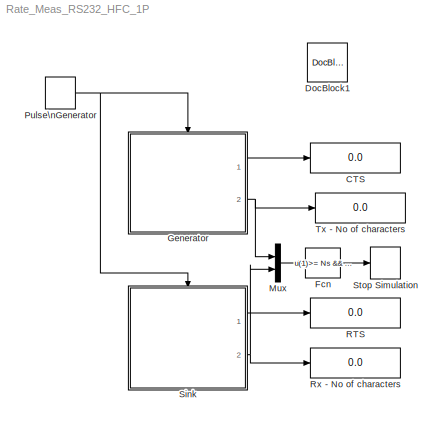
MODEL Rate_Meas_RS232_HFC_1P
KIND model
CONFIG PreLoadFcn = clear all;\nclose all;\nclc;\n\nTs = 0.01;          % clk (period)\nNs =  1;\n\n\n\n\n
CONFIG StartFcn = clc;\nclose all;\n\nNs =  200;      % Characters to Tx and to Rx\nminV = 0;       %  minimum data value\nmaxV = 255;       %  minimum data value\nTx_array = randi([minV maxV], 1, Ns, 'uint8');\nRx_array = randi([minV maxV], 1, Ns, 'uint8');\n\n\n%\n%   RS232 port initialization\n%\nPORTNAME = 'COM56';\nfprintf('\\nOpening RS232 port %s ...... ', PORTNAME);\ns2 = serial(PORTNAME,'BaudRate',9600,'Pa...<+411ch>
CONFIG StopFcn = e_time = toc(ts);\n\n%\n%   RS232 ports release\n%\ndisp(' ');\ndisp('Deactivating RS232 port ......');\n\nfclose(s2)\ndelete(s2)\nclear s2\n\nfprintf('RS232 port %s deactivated\\n', PORTNAME);\n\nif Tx_array == Rx_array\n  disp('Data exchange without errors');\n  fprintf('\\nData Rate = %4.2f Bps\\n', Ns/e_time);\nelse\n   Ne = sum((Tx_array - Rx_array) ~= 0);\n   fprintf('\\nData exchange with %...<+51ch>
BLOCK [Display] CTS
  Decimation = 1
  Lockdown = off
  Ports = [1]
  SID = 56
BLOCK [Reference] DocBlock1  REF=simulink/Model-Wide\nUtilities/DocBlock
  DocumentType = Text
  Ports = []
  SID = 15
  SourceBlock = simulink/Model-Wide\nUtilities/DocBlock
  SourceType = DocBlock
  UserData = DataTag0
  UserDataPersistent = on
BLOCK [Fcn] Fcn
  Expr = u(1)>= Ns && u(2)>=Ns
  SID = 81
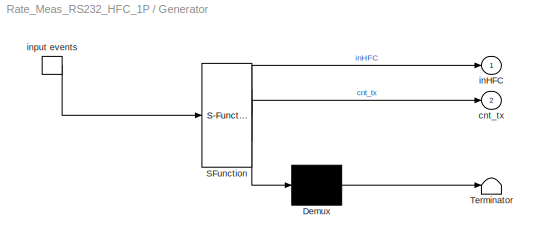
BLOCK [SubSystem] Generator
  ErrorFcn = Stateflow.Translate.translate
  FunctionWithSeparateData = off
  MaskHideContents = off
  MinAlgLoopOccurrences = off
  Opaque = off
  PermitHierarchicalResolution = ExplicitOnly
  Ports = [0, 2, 0, 1]
  PropExecContextOutsideSubsystem = off
  RTWSystemCode = Auto
  RequestExecContextInheritance = off
  SFBlockType = Chart
  SID = 45
  TreatAsAtomicUnit = on
BLOCK [Demux] Generator/ Demux 
  Outputs = 1
  Ports = [1, 1]
  SID = 45::54
BLOCK [S-Function] Generator/ SFunction 
  EnableBusSupport = on
  FunctionName = sf_sfun
  PortCounts = [1 3]
  Ports = [1, 3]
  SID = 45::53
  Tag = Stateflow S-Function Rate_Meas_RS232_HFC_1P 3
BLOCK [Terminator] Generator/ Terminator 
  SID = 45::55
BLOCK [TriggerPort] Generator/ input events 
  Ports = [0, 1]
  SID = 45::29
  ShowOutputPort = on
  StatesWhenEnabling = held
  TriggerType = either
BLOCK [Outport] Generator/cnt_tx
  IconDisplay = Port number
  Port = 2
  SID = 45::56
BLOCK [Outport] Generator/inHFC
  IconDisplay = Port number
  SID = 45::57
BLOCK [Mux] Mux
  DisplayOption = bar
  Inputs = 2
  Ports = [2, 1]
  SID = 82
BLOCK [DiscretePulseGenerator] Pulse\nGenerator
  Period = Ts
  Ports = [0, 1]
  PulseType = Time based
  PulseWidth = 50
  SID = 4
BLOCK [Display] RTS
  Decimation = 1
  Lockdown = off
  Ports = [1]
  SID = 69
BLOCK [Display] Rx - No of characters
  Decimation = 1
  Lockdown = off
  Ports = [1]
  SID = 68
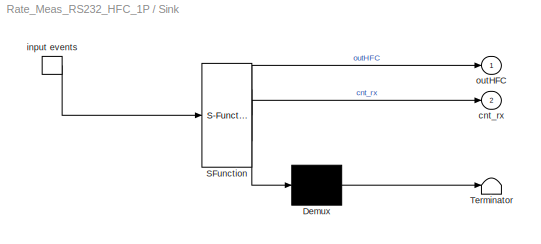
BLOCK [SubSystem] Sink
  ErrorFcn = Stateflow.Translate.translate
  FunctionWithSeparateData = off
  MaskHideContents = off
  MinAlgLoopOccurrences = off
  Opaque = off
  PermitHierarchicalResolution = ExplicitOnly
  Ports = [0, 2, 0, 1]
  PropExecContextOutsideSubsystem = off
  RTWSystemCode = Auto
  RequestExecContextInheritance = off
  SFBlockType = Chart
  SID = 66
  TreatAsAtomicUnit = on
BLOCK [Demux] Sink/ Demux 
  Outputs = 1
  Ports = [1, 1]
  SID = 66::54
BLOCK [S-Function] Sink/ SFunction 
  EnableBusSupport = on
  FunctionName = sf_sfun
  PortCounts = [1 3]
  Ports = [1, 3]
  SID = 66::53
  Tag = Stateflow S-Function Rate_Meas_RS232_HFC_1P 1
BLOCK [Terminator] Sink/ Terminator 
  SID = 66::55
BLOCK [TriggerPort] Sink/ input events 
  Ports = [0, 1]
  SID = 66::29
  ShowOutputPort = on
  StatesWhenEnabling = held
  TriggerType = either
BLOCK [Outport] Sink/cnt_rx
  IconDisplay = Port number
  Port = 2
  SID = 66::56
BLOCK [Outport] Sink/outHFC
  IconDisplay = Port number
  SID = 66::49
BLOCK [Stop] Stop Simulation
  SID = 76
BLOCK [Display] Tx - No of characters
  Decimation = 1
  Lockdown = off
  Ports = [1]
  SID = 58
LINE Fcn:1 -> Stop Simulation:1
LINE Generator/ Demux :1 -> Generator/ Terminator :1
LINE Generator/ SFunction :1 -> Generator/ Demux :1
LINE Generator/ SFunction :2 -> Generator/inHFC:1
LINE Generator/ SFunction :3 -> Generator/cnt_tx:1
LINE Generator/ input events :1 -> Generator/ SFunction :1
LINE Generator:1 -> CTS:1
NET Generator:2 -> Mux:1, Tx - No of characters:1
LINE Mux:1 -> Fcn:1
NET Pulse\nGenerator:1 -> Generator:trigger, Sink:trigger
LINE Sink/ Demux :1 -> Sink/ Terminator :1
LINE Sink/ SFunction :1 -> Sink/ Demux :1
LINE Sink/ SFunction :2 -> Sink/outHFC:1
LINE Sink/ SFunction :3 -> Sink/cnt_rx:1
LINE Sink/ input events :1 -> Sink/ SFunction :1
LINE Sink:1 -> RTS:1
NET Sink:2 -> Mux:2, Rx - No of characters:1
note: NET lines group one-source signal fan-out (src -> all destinations, sorted); 1:1 wires keep LINE
CHART Sink states=2 transitions=5
  STATE_LABEL "RxState\\nen: ml('DIn_2');\\n      Val_rx = ml.d2r_s2;\\n      cnt_rx = cnt_rx + 1;\\n      ml.Rx_array[cnt_rx] = Val_rx;"
  STATE_LABEL 'IniState'
CHART Generator states=4 transitions=10
  STATE_LABEL "Dcalc\\nen: ml('CTS_2');\\n      LBstatus_tx = ml.cts_s2;\\n      inHFC = LBstatus_tx;"
  STATE_LABEL "IniState\\nml('CTS_2');\\nLBstatus_tx = ml.cts_s2;\\ninHFC = LBstatus_tx;"
  STATE_LABEL "TxState\\nen: cnt_tx = cnt_tx + 1;\\n      Val_tx = ml.Tx_array[cnt_tx];\\n      ml.d2o_s2 = Val_tx;\\n      ml('DOut_2');"
  STATE_LABEL 'Idle'
